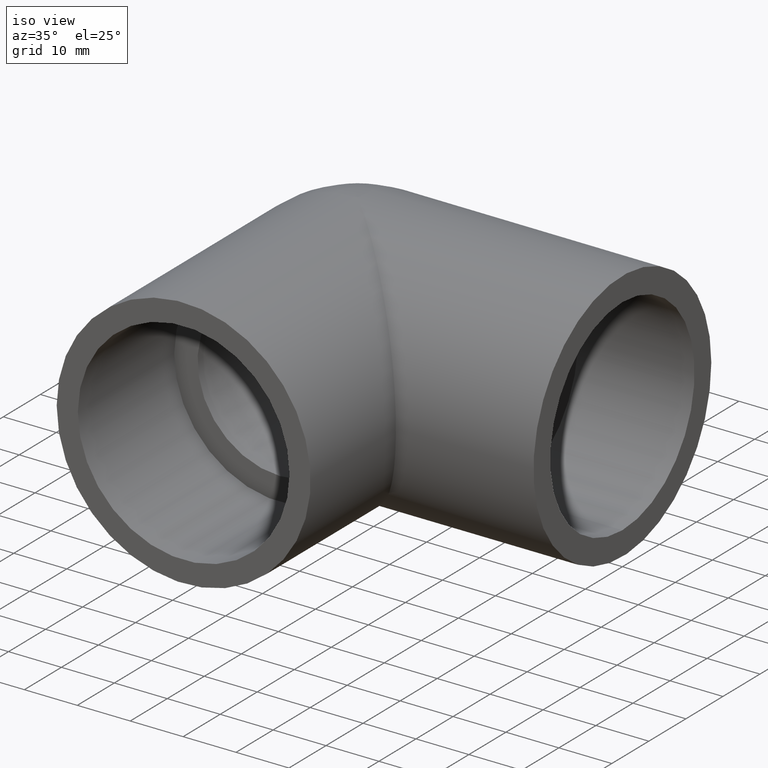
[diagram: clean part render]
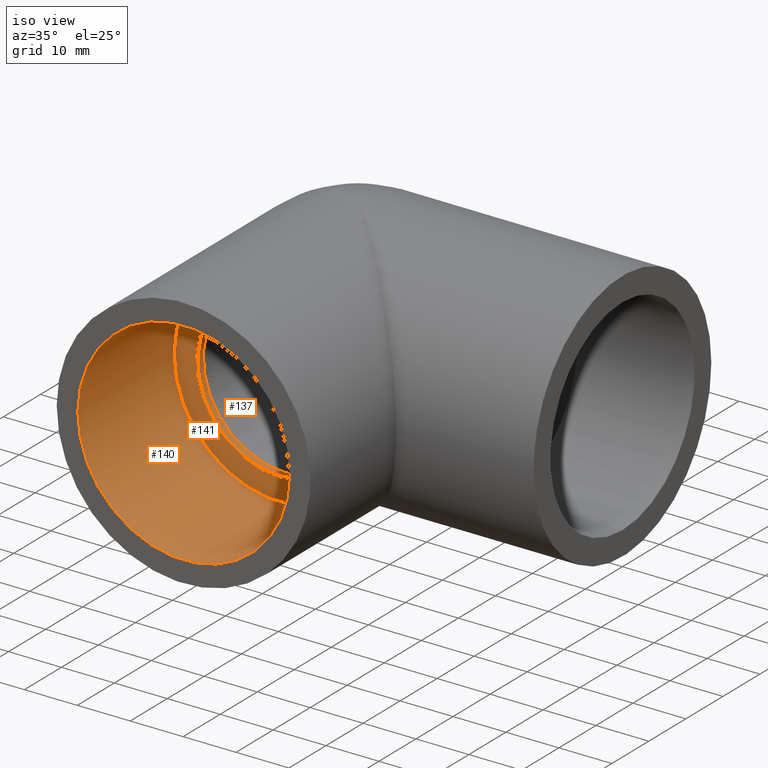
[diagram: same view with one multi-face feature highlighted, each face labeled with its STEP entity id]
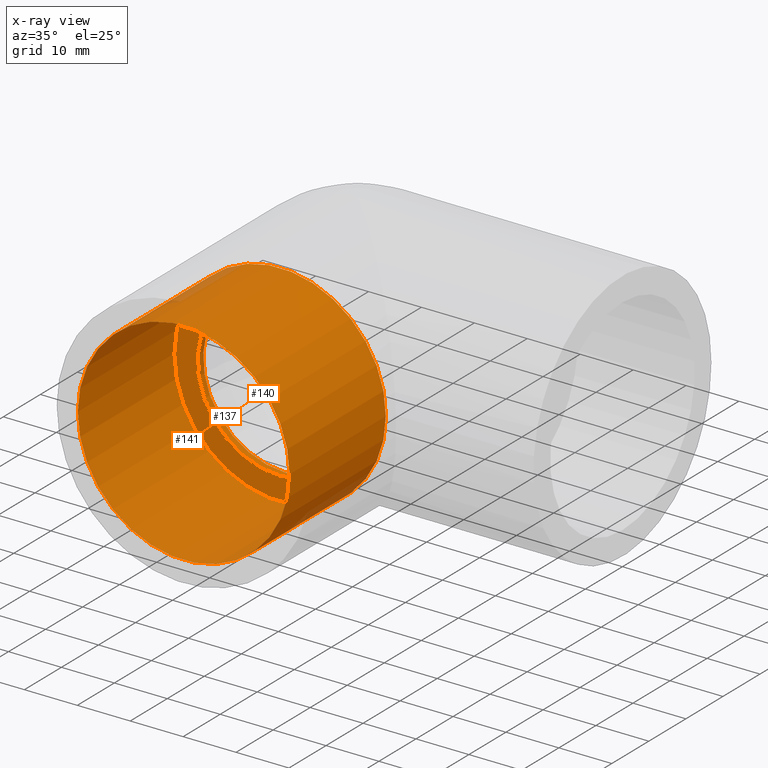
[diagram: x-ray of the same camera — body ghosted, the whole feature saturated]
A machine part, iso view. The highlighted faces form ONE feature: a stepped (counterbored) hole: 2 coaxial cylindrical walls of radii 15.5808 -> 20 mm joined by 1 annular planar shoulder face(s). The faces share edges in the B-rep.
The next image is the same camera in x-ray: the body ghosted and the whole hole feature saturated, so the bore chain is visible through the body.
Their STEP definitions:
[1] entity #140 (Cylinder):
#25=FACE_BOUND('',#52,.T.);
#36=FACE_OUTER_BOUND('',#51,.T.);
#51=EDGE_LOOP('',(#111));
#52=EDGE_LOOP('',(#112));
#72=CIRCLE('',#159,20.);
#73=CIRCLE('',#160,20.);
#84=VERTEX_POINT('',#241);
#85=VERTEX_POINT('',#243);
#96=EDGE_CURVE('',#84,#84,#72,.T.);
#97=EDGE_CURVE('',#85,#85,#73,.T.);
#111=ORIENTED_EDGE('',*,*,#96,.T.);
#112=ORIENTED_EDGE('',*,*,#97,.F.);
#133=CYLINDRICAL_SURFACE('',#158,20.);
#140=ADVANCED_FACE('',(#36,#25),#133,.F.);
#158=AXIS2_PLACEMENT_3D('',#240,#192,#193);
#159=AXIS2_PLACEMENT_3D('',#242,#194,#195);
#160=AXIS2_PLACEMENT_3D('',#244,#196,#197);
#192=DIRECTION('center_axis',(-1.70803542250024E-16,1.,0.));
#193=DIRECTION('ref_axis',(-1.,-1.70803542250024E-16,0.));
#194=DIRECTION('center_axis',(-1.22464679914735E-16,1.,0.));
#195=DIRECTION('ref_axis',(-1.,-1.22464679914735E-16,0.));
#196=DIRECTION('center_axis',(-1.22464679914735E-16,1.,0.));
#197=DIRECTION('ref_axis',(-1.,-1.70803542250024E-16,0.));
#240=CARTESIAN_POINT('Origin',(5.75583995599256E-15,-47.,0.));
#241=CARTESIAN_POINT('',(20.,-21.,2.44929359829471E-15));
#242=CARTESIAN_POINT('Origin',(1.31494785749193E-15,-21.,0.));
#243=CARTESIAN_POINT('',(20.,-47.,2.44929359829471E-15));
#244=CARTESIAN_POINT('Origin',(5.75583995599256E-15,-47.,0.));
[2] entity #137 (Cylinder):
#22=FACE_BOUND('',#46,.T.);
#33=FACE_OUTER_BOUND('',#45,.T.);
#45=EDGE_LOOP('',(#105));
#46=EDGE_LOOP('',(#106));
#68=CIRCLE('',#152,15.5808);
#69=CIRCLE('',#153,15.5808);
#80=VERTEX_POINT('',#230);
#81=VERTEX_POINT('',#232);
#92=EDGE_CURVE('',#80,#80,#68,.T.);
#93=EDGE_CURVE('',#81,#81,#69,.T.);
#105=ORIENTED_EDGE('',*,*,#92,.F.);
#106=ORIENTED_EDGE('',*,*,#93,.F.);
#131=CYLINDRICAL_SURFACE('',#151,15.5808);
#137=ADVANCED_FACE('',(#33,#22),#131,.F.);
#151=AXIS2_PLACEMENT_3D('',#229,#178,#179);
#152=AXIS2_PLACEMENT_3D('',#231,#180,#181);
#153=AXIS2_PLACEMENT_3D('',#233,#182,#183);
#178=DIRECTION('center_axis',(2.36383942479455E-17,-1.,0.));
#179=DIRECTION('ref_axis',(0.,0.,1.));
#180=DIRECTION('center_axis',(-1.22464679914735E-16,1.,0.));
#181=DIRECTION('ref_axis',(0.,0.,1.));
#182=DIRECTION('center_axis',(-2.83276944882399E-16,-1.,0.));
#183=DIRECTION('ref_axis',(0.,0.,1.));
#229=CARTESIAN_POINT('Origin',(7.32177861873785E-18,-19.476,0.));
#230=CARTESIAN_POINT('',(-1.8647509933629E-15,-21.,-15.5808));
#231=CARTESIAN_POINT('Origin',(4.33466914526069E-17,-21.,0.));
#232=CARTESIAN_POINT('',(-1.90077590619677E-15,-19.476,-15.5808));
#233=CARTESIAN_POINT('Origin',(7.32177861873785E-18,-19.476,0.));
[3] entity #141 (Plane):
#17=PLANE('',#161);
#26=FACE_BOUND('',#54,.T.);
#37=FACE_OUTER_BOUND('',#53,.T.);
#53=EDGE_LOOP('',(#113));
#54=EDGE_LOOP('',(#114));
#68=CIRCLE('',#152,15.5808);
#72=CIRCLE('',#159,20.);
#80=VERTEX_POINT('',#230);
#84=VERTEX_POINT('',#241);
#92=EDGE_CURVE('',#80,#80,#68,.T.);
#96=EDGE_CURVE('',#84,#84,#72,.T.);
#113=ORIENTED_EDGE('',*,*,#96,.F.);
#114=ORIENTED_EDGE('',*,*,#92,.T.);
#141=ADVANCED_FACE('',(#37,#26),#17,.T.);
#152=AXIS2_PLACEMENT_3D('',#231,#180,#181);
#159=AXIS2_PLACEMENT_3D('',#242,#194,#195);
#161=AXIS2_PLACEMENT_3D('',#245,#198,#199);
#180=DIRECTION('center_axis',(-1.22464679914735E-16,1.,0.));
#181=DIRECTION('ref_axis',(0.,0.,1.));
#194=DIRECTION('center_axis',(-1.22464679914735E-16,1.,0.));
#195=DIRECTION('ref_axis',(-1.,-1.22464679914735E-16,0.));
#198=DIRECTION('center_axis',(1.22464679914735E-16,-1.,0.));
#199=DIRECTION('ref_axis',(0.,0.,-1.));
#230=CARTESIAN_POINT('',(-1.8647509933629E-15,-21.,-15.5808));
#231=CARTESIAN_POINT('Origin',(4.33466914526069E-17,-21.,0.));
#241=CARTESIAN_POINT('',(20.,-21.,2.44929359829471E-15));
#242=CARTESIAN_POINT('Origin',(1.31494785749193E-15,-21.,0.));
#245=CARTESIAN_POINT('Origin',(9.57436748676249E-16,-21.,3.70074341541719E-16));